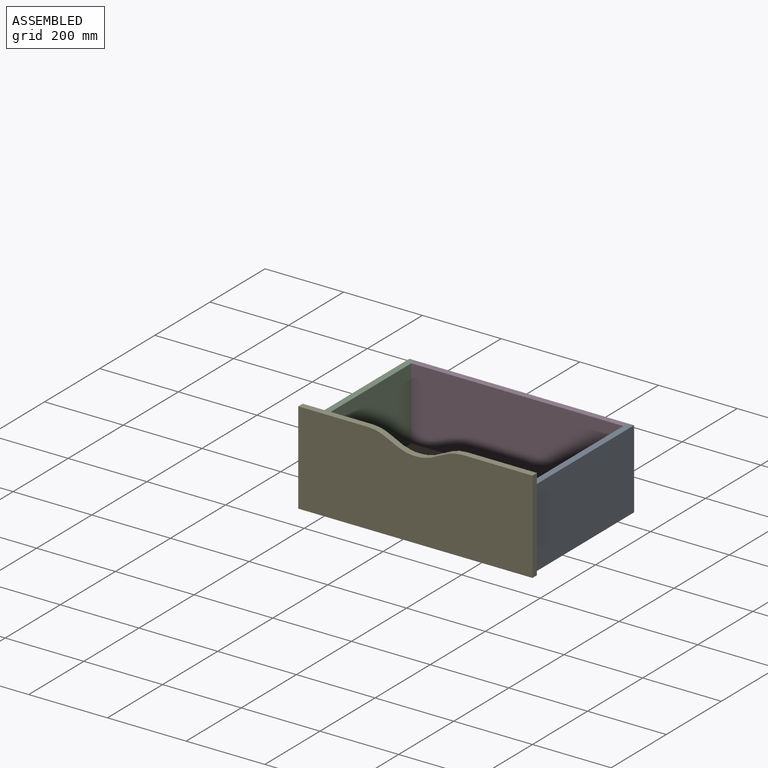
[diagram: assembled view]
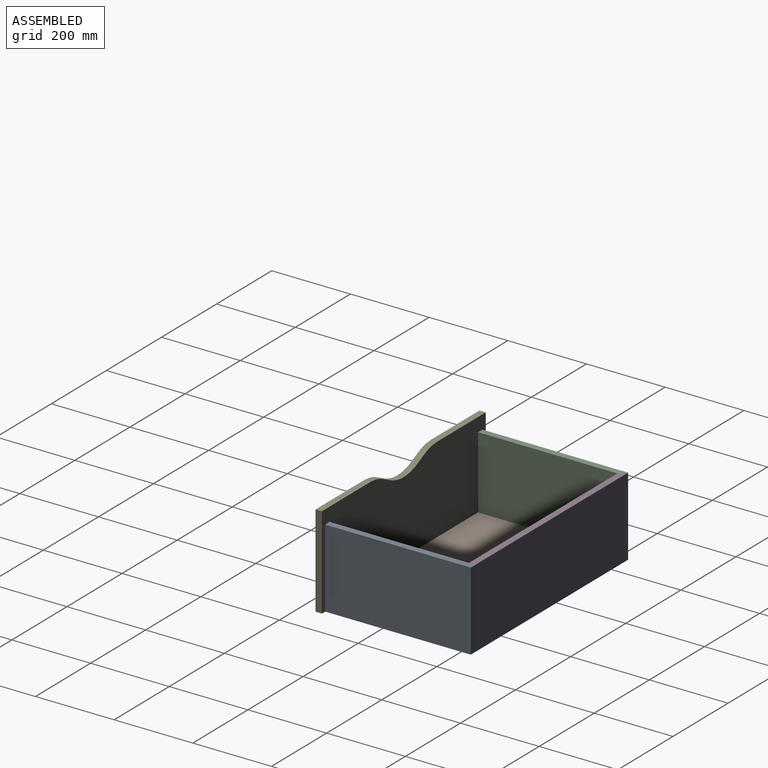
[diagram: assembled view, second angle]
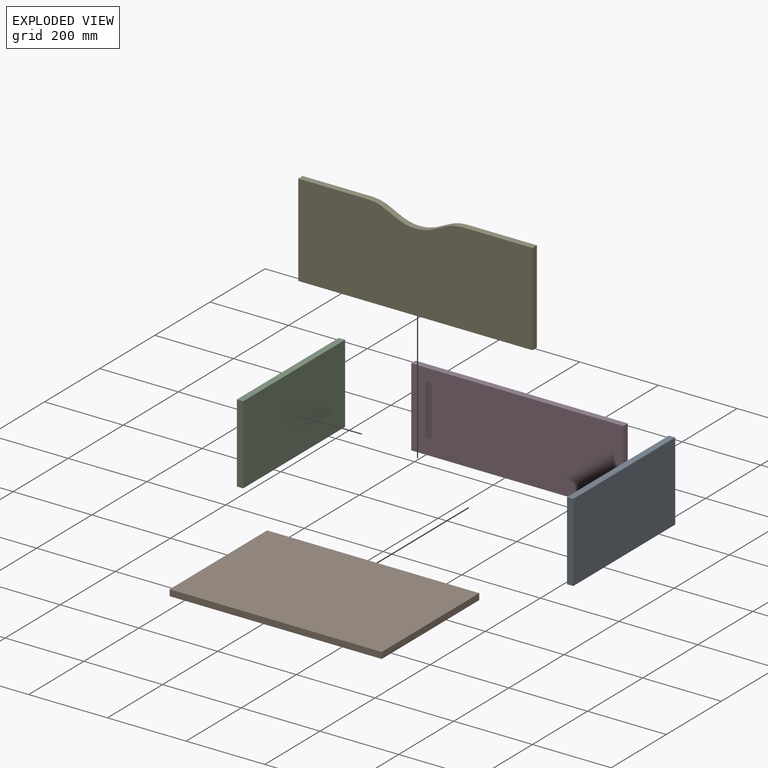
[diagram: exploded view]
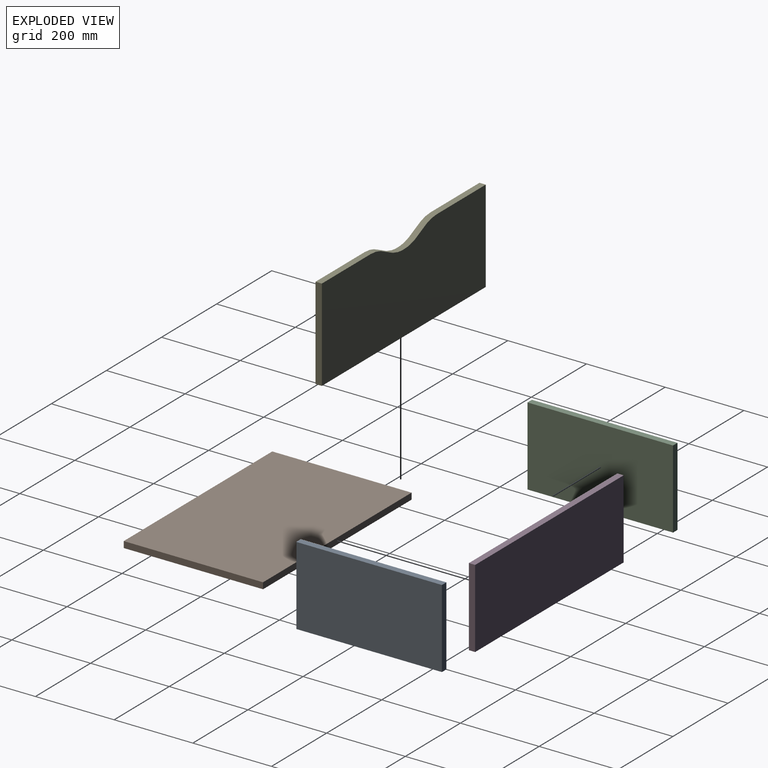
[diagram: exploded view, second angle]
ASSEMBLY  parts=5 mates=4
PART A: 6 faces, bbox 16x370x200 mm
  f0: plane 370x200mm, normal (1,0,0), area 74000mm2, adj f1,f3,f4,f5
  f1: plane 370x16mm, normal (0,0,-1), area 5920mm2, adj f0,f2,f4,f5
  f2: plane 370x200mm, normal (-1,0,0), area 74000mm2, adj f1,f3,f4,f5
  f3: plane 370x16mm, normal (0,0,1), area 5920mm2, adj f0,f2,f4,f5
  f4: plane 200x16mm, normal (0,1,0), area 3200mm2, adj f0,f1,f2,f3
  f5: plane 200x16mm, normal (0,-1,0), area 3200mm2, adj f0,f1,f2,f3
PART B: 6 faces, bbox 539x354x16 mm
  f0: plane 354x16mm, normal (1,0,0), area 5664mm2, adj f1,f3,f4,f5
  f1: plane 539x16mm, normal (0,-1,0), area 8624mm2, adj f0,f2,f4,f5
  f2: plane 354x16mm, normal (-1,0,0), area 5664mm2, adj f1,f3,f4,f5
  f3: plane 539x16mm, normal (0,1,0), area 8624mm2, adj f0,f2,f4,f5
  f4: plane 539x354mm, normal (0,0,1), area 190806mm2, adj f0,f1,f2,f3
  f5: plane 539x354mm, normal (0,0,-1), area 190806mm2, adj f0,f1,f2,f3
PART C: 6 faces, bbox 16x370x200 mm
  f0: plane 370x16mm, normal (0,0,-1), area 5920mm2, adj f1,f3,f4,f5
  f1: plane 370x200mm, normal (-1,0,0), area 74000mm2, adj f0,f2,f4,f5
  f2: plane 370x16mm, normal (0,0,1), area 5920mm2, adj f1,f3,f4,f5
  f3: plane 370x200mm, normal (1,0,0), area 74000mm2, adj f0,f2,f4,f5
  f4: plane 200x16mm, normal (0,1,0), area 3200mm2, adj f0,f1,f2,f3
  f5: plane 200x16mm, normal (0,-1,0), area 3200mm2, adj f0,f1,f2,f3
PART D: 6 faces, bbox 539x16x200 mm
  f0: plane 200x16mm, normal (1,0,0), area 3200mm2, adj f1,f3,f4,f5
  f1: plane 539x16mm, normal (0,0,-1), area 8624mm2, adj f0,f2,f4,f5
  f2: plane 200x16mm, normal (-1,0,0), area 3200mm2, adj f1,f3,f4,f5
  f3: plane 539x16mm, normal (0,0,1), area 8624mm2, adj f0,f2,f4,f5
  f4: plane 539x200mm, normal (0,-1,0), area 107800mm2, adj f0,f1,f2,f3
  f5: plane 539x200mm, normal (0,1,0), area 107800mm2, adj f0,f1,f2,f3
PART E: 9 faces, bbox 595x16x235 mm
  f0: plane 177.5x16mm, normal (0,0,1), area 2840mm2, adj f4,f5,f6,f8
  f1: plane 177.5x16mm, normal (0,0,1), area 2840mm2, adj f2,f5,f6,f7
  f2: plane 235x16mm, normal (-1,0,0), area 3760mm2, adj f1,f3,f5,f6
  f3: plane 595x16mm, normal (0,0,-1), area 9520mm2, adj f2,f4,f5,f6
  f4: plane 235x16mm, normal (1,0,0), area 3760mm2, adj f0,f3,f5,f6
  f5: plane 595x235mm, normal (0,-1,0), area 135520mm2, adj f0,f1,f2,f3,f4,f7,f8
  f6: plane 595x235mm, normal (0,1,0), area 135520mm2, adj f0,f1,f2,f3,f4,f7,f8
  f7: extruded ~120x35mm, area 2023.6mm2, adj f1,f5,f6,f8
  f8: extruded ~120x35mm, area 2023.6mm2, adj f0,f5,f6,f7
PLACE A t=(-354.15,-131.82,-95.56)mm
PLACE B t=(-354.15,-131.82,-95.56)mm
PLACE C t=(-354.15,-131.82,-95.56)mm
PLACE D t=(-354.15,-131.82,-95.56)mm
PLACE E t=(-354.15,-131.82,-95.56)mm
MATE fastened D.f1 <-> B.f5  axis (0,0,1) through (-84.65,222.18,-213.06)mm
MATE fastened C.f0 <-> E.f3  axis (0,0,1) through (-639.65,-131.82,-213.06)mm
MATE fastened B.f5 <-> C.f0  axis (0,0,1) through (-623.65,-131.82,-213.06)mm
MATE fastened A.f1 <-> B.f5  axis (0,0,1) through (-84.65,-131.82,-213.06)mm
